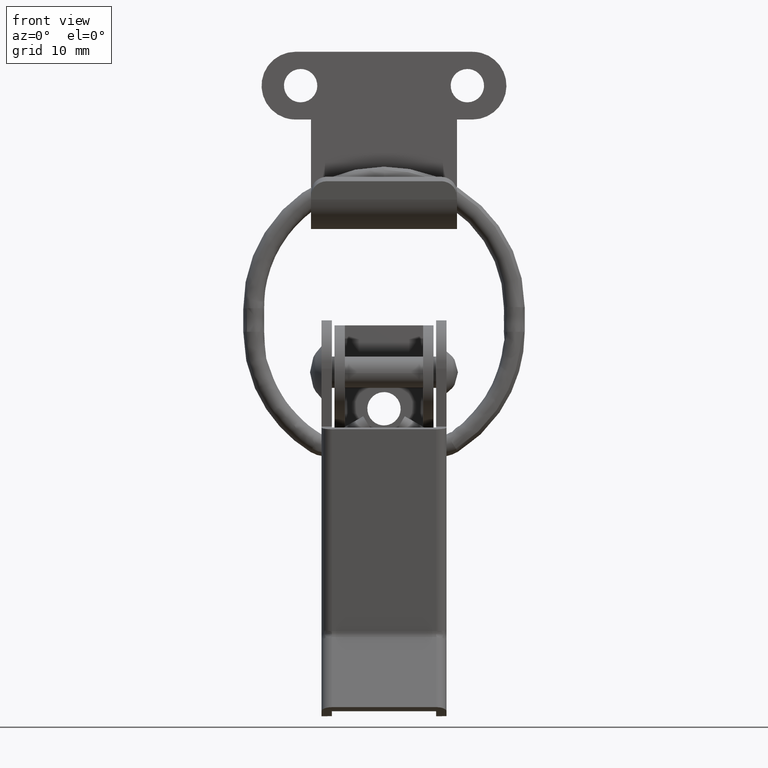
[diagram: clean part render]
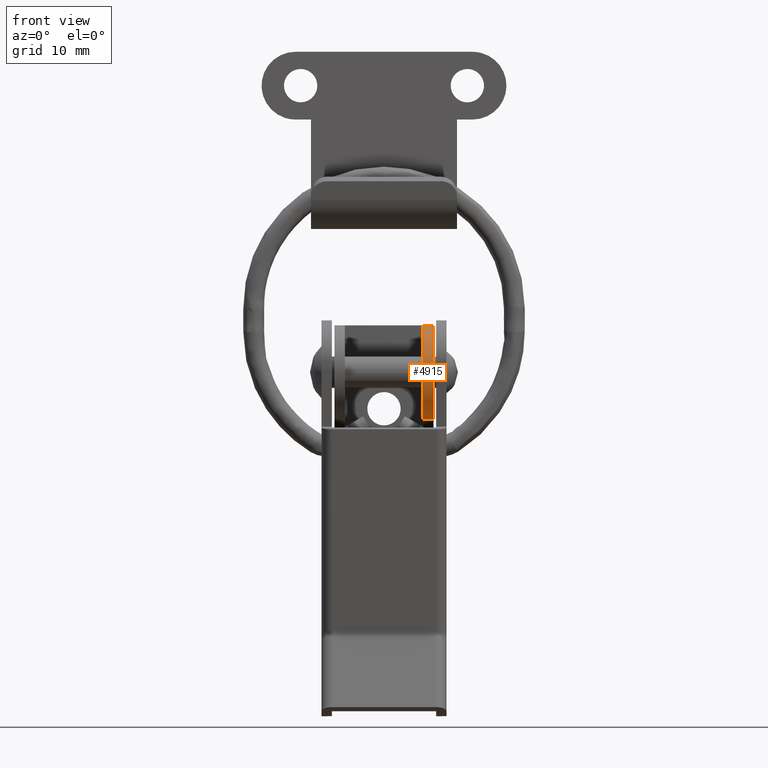
[diagram: same view with one face highlighted and labeled with its STEP entity id]
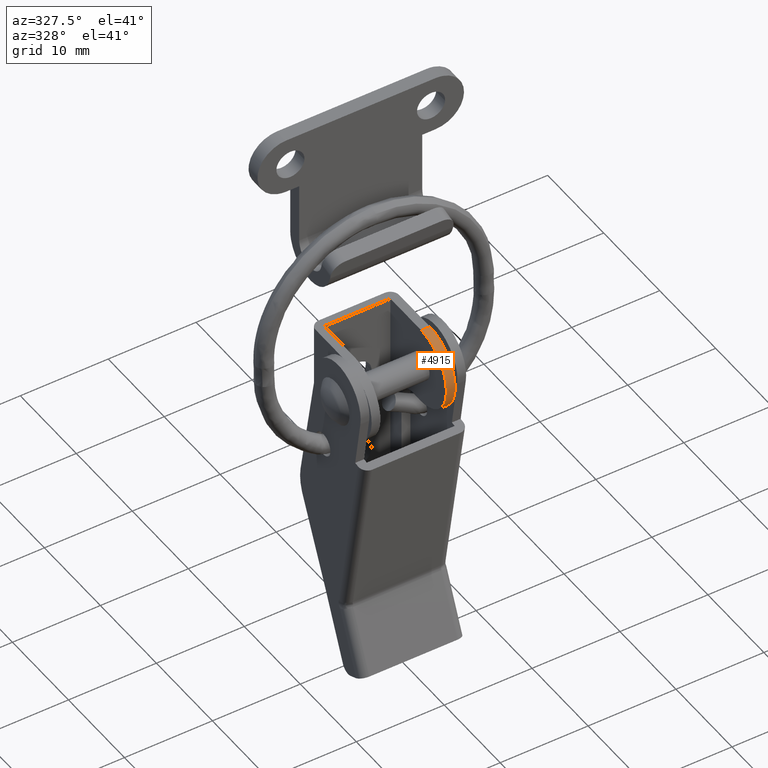
[diagram: same view with one face highlighted and labeled with its STEP entity id]
A machine part, front view. The second image highlights one B-rep face of the part: STEP entity #4915.
A second angle (auxiliary view) of the same face is appended — the face is thin or edge-on in the first view.
In plain terms, the highlighted face is a freeform B-spline surface patch.
Its self-contained STEP definition (entity closure, byte-faithful):
#4499=CARTESIAN_POINT('',(3.750000000000000,0.0,4.500000000000200));
#4500=VERTEX_POINT('',#4499);
#4501=CARTESIAN_POINT('',(3.750000000000000,-8.266093E-016,-4.500000000000200));
#4502=VERTEX_POINT('',#4501);
#4503=CARTESIAN_POINT('',(3.750000000000000,0.0,4.500000000000200));
#4504=CARTESIAN_POINT('',(3.749999999999999,-4.500000000000201,4.500000000000201));
#4505=CARTESIAN_POINT('',(3.750000000000000,-4.500000000000200,0.0));
#4506=CARTESIAN_POINT('',(3.749999999999999,-4.500000000000201,-4.500000000000201));
#4507=CARTESIAN_POINT('',(3.750000000000000,0.0,-4.500000000000200));
#4515=(BOUNDED_CURVE()B_SPLINE_CURVE(2,(#4503,#4504,#4505,#4506,#4507),.UNSPECIFIED.,.F.,.U.)B_SPLINE_CURVE_WITH_KNOTS((3,2,3),(0.0,0.500000000000000,1.0),.UNSPECIFIED.)CURVE()GEOMETRIC_REPRESENTATION_ITEM()RATIONAL_B_SPLINE_CURVE((1.0,0.707106781186548,1.0,0.707106781186548,1.0))REPRESENTATION_ITEM(''));
#4516=EDGE_CURVE('',#4500,#4502,#4515,.T.);
#4685=CARTESIAN_POINT('',(4.750000000000000,0.0,4.500000000000200));
#4686=VERTEX_POINT('',#4685);
#4692=CARTESIAN_POINT('',(4.750000000000000,-8.266093E-016,-4.500000000000200));
#4693=VERTEX_POINT('',#4692);
#4694=CARTESIAN_POINT('',(4.750000000000000,0.0,4.500000000000200));
#4695=CARTESIAN_POINT('',(4.750000000000000,-4.500000000000201,4.500000000000201));
#4696=CARTESIAN_POINT('',(4.750000000000000,-4.500000000000200,0.0));
#4697=CARTESIAN_POINT('',(4.750000000000000,-4.500000000000201,-4.500000000000201));
#4698=CARTESIAN_POINT('',(4.750000000000000,0.0,-4.500000000000200));
#4706=(BOUNDED_CURVE()B_SPLINE_CURVE(2,(#4694,#4695,#4696,#4697,#4698),.UNSPECIFIED.,.F.,.U.)B_SPLINE_CURVE_WITH_KNOTS((3,2,3),(0.0,0.500000000000000,1.0),.UNSPECIFIED.)CURVE()GEOMETRIC_REPRESENTATION_ITEM()RATIONAL_B_SPLINE_CURVE((1.0,0.707106781186548,1.0,0.707106781186548,1.0))REPRESENTATION_ITEM(''));
#4707=EDGE_CURVE('',#4686,#4693,#4706,.T.);
#4769=CARTESIAN_POINT('',(4.750000000000000,0.0,4.500000000000200));
#4770=CARTESIAN_POINT('',(3.750000000000000,0.0,4.500000000000200));
#4771=QUASI_UNIFORM_CURVE('',1,(#4769,#4770),.UNSPECIFIED.,.F.,.U.);
#4772=EDGE_CURVE('',#4686,#4500,#4771,.T.);
#4883=CARTESIAN_POINT('',(4.750000000000000,-8.266093E-016,-4.500000000000200));
#4884=CARTESIAN_POINT('',(3.750000000000000,-8.266093E-016,-4.500000000000200));
#4885=QUASI_UNIFORM_CURVE('',1,(#4883,#4884),.UNSPECIFIED.,.F.,.U.);
#4886=EDGE_CURVE('',#4693,#4502,#4885,.T.);
#4891=CARTESIAN_POINT('',(4.775000000000001,0.039269409742681,4.499828653788969));
#4892=CARTESIAN_POINT('',(3.724374999999999,0.039269409742681,4.499828653788969));
#4893=CARTESIAN_POINT('',(4.775000000000001,-4.620439568119205,4.540493317982178));
#4894=CARTESIAN_POINT('',(3.724374999999998,-4.620439568119205,4.540493317982178));
#4895=CARTESIAN_POINT('',(4.775000000000001,-4.498457962390205,-0.117796267385436));
#4896=CARTESIAN_POINT('',(3.724374999999999,-4.498457962390205,-0.117796267385436));
#4897=CARTESIAN_POINT('',(4.775000000000001,-4.376476356661207,-4.776085852753050));
#4898=CARTESIAN_POINT('',(3.724374999999998,-4.376476356661207,-4.776085852753050));
#4899=CARTESIAN_POINT('',(4.775000000000001,0.274718427906868,-4.491606592898599));
#4900=CARTESIAN_POINT('',(3.724374999999999,0.274718427906868,-4.491606592898599));
#4908=(BOUNDED_SURFACE()B_SPLINE_SURFACE(1,2,((#4891,#4893,#4895,#4897,#4899),(#4892,#4894,#4896,#4898,#4900)),.UNSPECIFIED.,.F.,.F.,.U.)B_SPLINE_SURFACE_WITH_KNOTS((2,2),(3,2,3),(0.0,1.0),(0.0,7.640546691773219,15.281093383546439),.UNSPECIFIED.)GEOMETRIC_REPRESENTATION_ITEM()RATIONAL_B_SPLINE_SURFACE(((1.0,0.694658370458997,1.0,0.694658370458997,1.0),(1.0,0.694658370458997,1.0,0.694658370458997,1.0)))REPRESENTATION_ITEM('')SURFACE());
#4909=ORIENTED_EDGE('',*,*,#4772,.T.);
#4910=ORIENTED_EDGE('',*,*,#4516,.T.);
#4911=ORIENTED_EDGE('',*,*,#4886,.F.);
#4912=ORIENTED_EDGE('',*,*,#4707,.F.);
#4913=EDGE_LOOP('',(#4909,#4910,#4911,#4912));
#4914=FACE_OUTER_BOUND('',#4913,.T.);
#4915=ADVANCED_FACE('',(#4914),#4908,.T.);